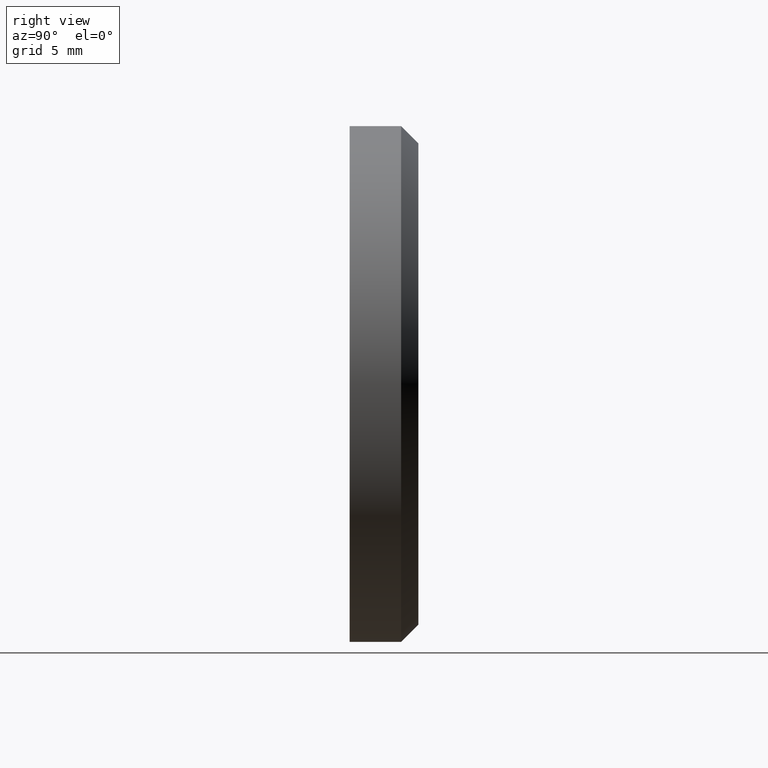
[diagram: clean part render]
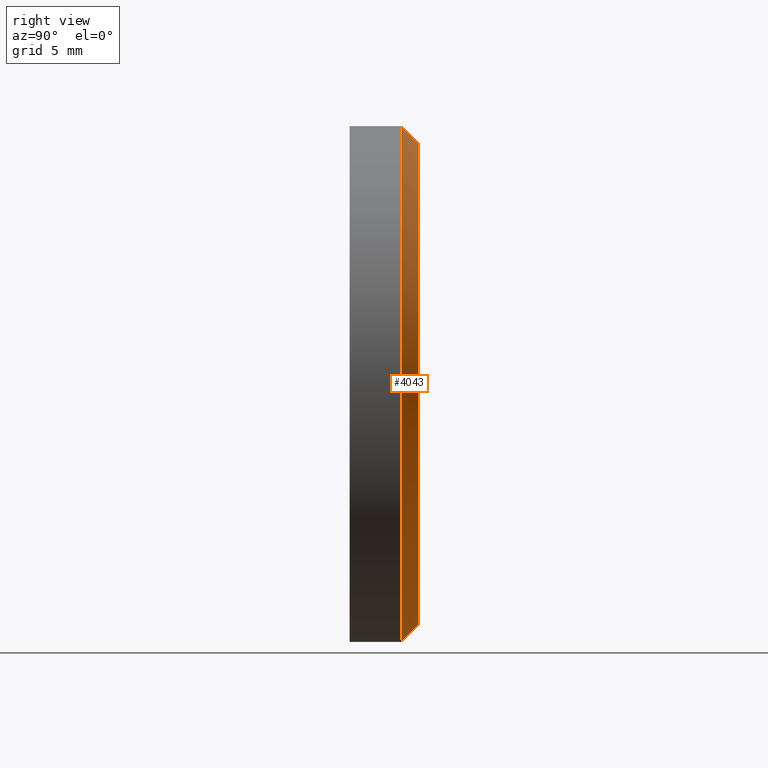
[diagram: same view with one face highlighted and labeled with its STEP entity id]
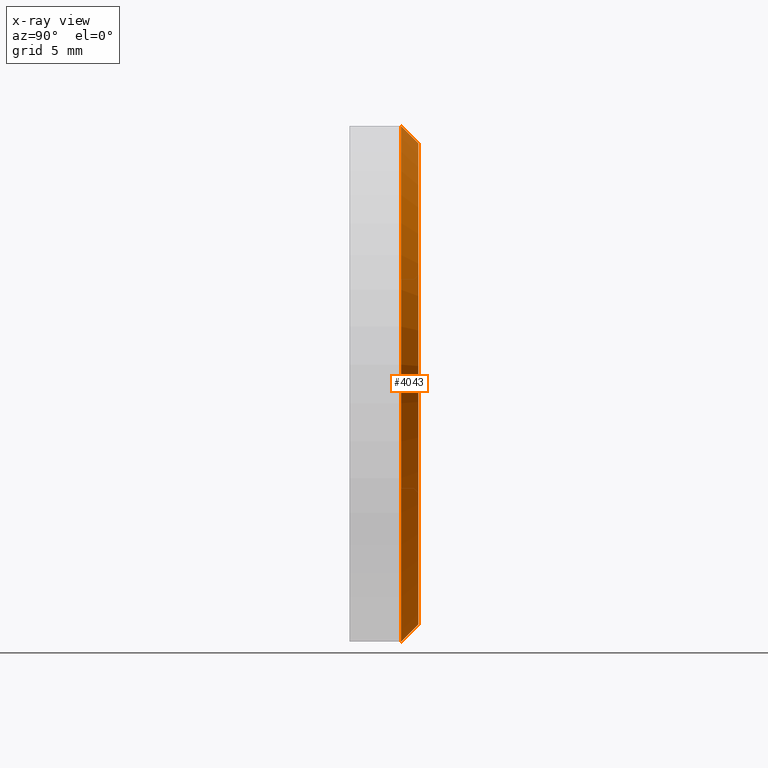
[diagram: x-ray of the same camera — body ghosted, the highlighted face saturated]
A machine part, right view. The second image highlights one B-rep face of the part: STEP entity #4043.
The next image is the same camera in x-ray: the body ghosted, the highlighted face saturated — about 0% of this face is hidden behind the body in this view.
In plain terms, the highlighted conical surface has half-angle 45 deg.
Its self-contained STEP definition (entity closure, byte-faithful):
#1176 = VERTEX_POINT ( 'NONE', #3737 ) ;
#1327 = DIRECTION ( 'NONE',  ( 0.000000000000000000, 1.000000000000000000, 0.000000000000000000 ) ) ;
#1931 = DIRECTION ( 'NONE',  ( 0.000000000000000000, 0.000000000000000000, 1.000000000000000000 ) ) ;
#2079 = EDGE_CURVE ( 'NONE', #15682, #6092, #15263, .T. ) ;
#2437 = VECTOR ( 'NONE', #3781, 1000.000000000000114 ) ;
#3106 = ORIENTED_EDGE ( 'NONE', *, *, #2079, .F. ) ;
#3167 = DIRECTION ( 'NONE',  ( 0.000000000000000000, -1.000000000000000000, 0.000000000000000000 ) ) ;
#3457 = CIRCLE ( 'NONE', #8043, 15.00000000000000000 ) ;
#3737 = CARTESIAN_POINT ( 'NONE',  ( 1.775737858763661226E-15, 4.000000000000000000, 13.99999999999998934 ) ) ;
#3781 = DIRECTION ( 'NONE',  ( 8.659560562354909439E-17, -0.7071067811865493491, 0.7071067811865456854 ) ) ;
#4043 = ADVANCED_FACE ( 'NONE', ( #9328 ), #10849, .T. ) ;
#5248 = EDGE_CURVE ( 'NONE', #1176, #8459, #5285, .T. ) ;
#5285 = LINE ( 'NONE', #13482, #2437 ) ;
#6092 = VERTEX_POINT ( 'NONE', #12982 ) ;
#7726 = EDGE_CURVE ( 'NONE', #1176, #15682, #10032, .T. ) ;
#8043 = AXIS2_PLACEMENT_3D ( 'NONE', #10584, #3167, #1931 ) ;
#8279 = ORIENTED_EDGE ( 'NONE', *, *, #7726, .F. ) ;
#8459 = VERTEX_POINT ( 'NONE', #10656 ) ;
#8778 = VECTOR ( 'NONE', #12123, 1000.000000000000114 ) ;
#9328 = FACE_OUTER_BOUND ( 'NONE', #13995, .T. ) ;
#9489 = EDGE_CURVE ( 'NONE', #6092, #8459, #3457, .T. ) ;
#9526 = ORIENTED_EDGE ( 'NONE', *, *, #9489, .F. ) ;
#9758 = AXIS2_PLACEMENT_3D ( 'NONE', #12564, #10166, #12511 ) ;
#9882 = DIRECTION ( 'NONE',  ( 0.000000000000000000, 0.000000000000000000, 1.000000000000000000 ) ) ;
#10032 = CIRCLE ( 'NONE', #15786, 13.99999999999998934 ) ;
#10140 = ORIENTED_EDGE ( 'NONE', *, *, #5248, .T. ) ;
#10166 = DIRECTION ( 'NONE',  ( 0.000000000000000000, -1.000000000000000000, 0.000000000000000000 ) ) ;
#10584 = CARTESIAN_POINT ( 'NONE',  ( 0.000000000000000000, 2.999999999999985345, 0.000000000000000000 ) ) ;
#10656 = CARTESIAN_POINT ( 'NONE',  ( 1.836970198721029589E-15, 2.999999999999985345, 15.00000000000000000 ) ) ;
#10849 = CONICAL_SURFACE ( 'NONE', #9758, 13.99999999999998934, 0.7853981633974456145 ) ;
#11043 = CARTESIAN_POINT ( 'NONE',  ( 0.000000000000000000, 4.000000000000000000, 0.000000000000000000 ) ) ;
#12123 = DIRECTION ( 'NONE',  ( 0.000000000000000000, -0.7071067811865493491, -0.7071067811865456854 ) ) ;
#12511 = DIRECTION ( 'NONE',  ( 0.000000000000000000, 0.000000000000000000, -1.000000000000000000 ) ) ;
#12564 = CARTESIAN_POINT ( 'NONE',  ( 0.000000000000000000, 4.000000000000000000, 0.000000000000000000 ) ) ;
#12982 = CARTESIAN_POINT ( 'NONE',  ( 0.000000000000000000, 2.999999999999985345, -15.00000000000000000 ) ) ;
#13482 = CARTESIAN_POINT ( 'NONE',  ( 1.714505518806293257E-15, 4.000000000000000000, 13.99999999999998934 ) ) ;
#13995 = EDGE_LOOP ( 'NONE', ( #8279, #10140, #9526, #3106 ) ) ;
#14344 = CARTESIAN_POINT ( 'NONE',  ( 0.000000000000000000, 4.000000000000000000, -13.99999999999998934 ) ) ;
#14673 = CARTESIAN_POINT ( 'NONE',  ( 0.000000000000000000, 4.000000000000000000, -13.99999999999998934 ) ) ;
#15263 = LINE ( 'NONE', #14344, #8778 ) ;
#15682 = VERTEX_POINT ( 'NONE', #14673 ) ;
#15786 = AXIS2_PLACEMENT_3D ( 'NONE', #11043, #1327, #9882 ) ;